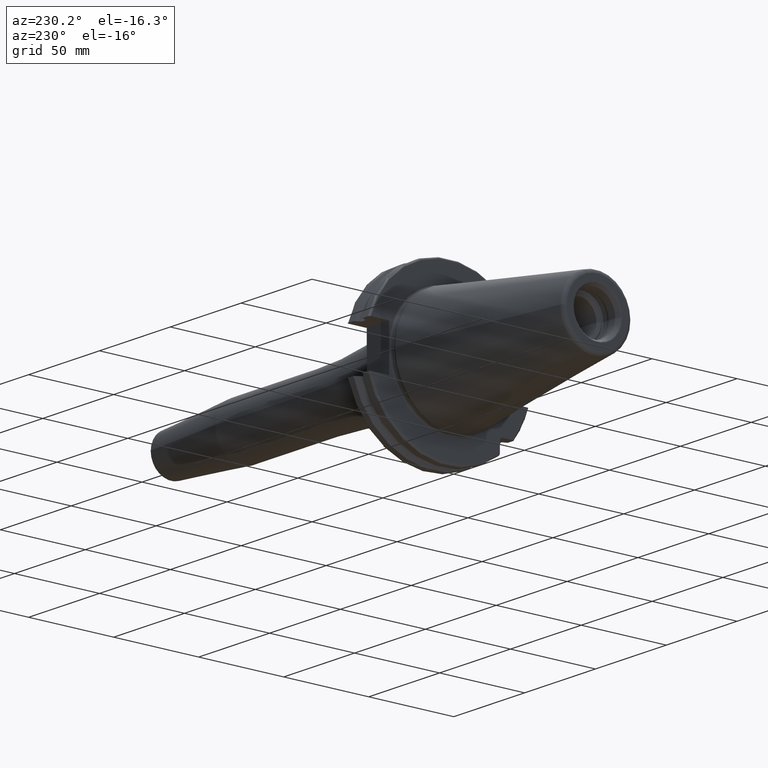
[diagram: clean part render]
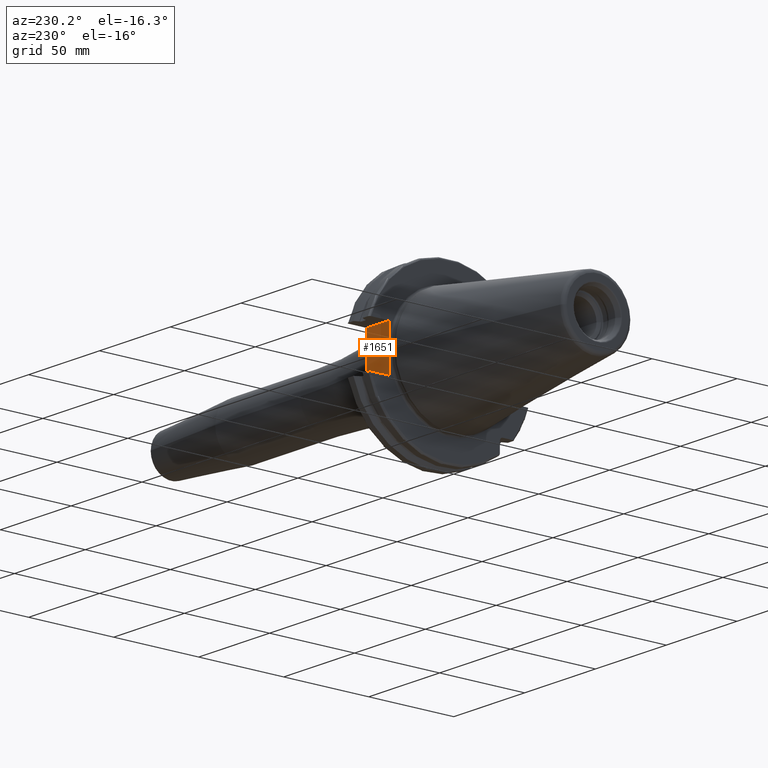
[diagram: same view with one face highlighted and labeled with its STEP entity id]
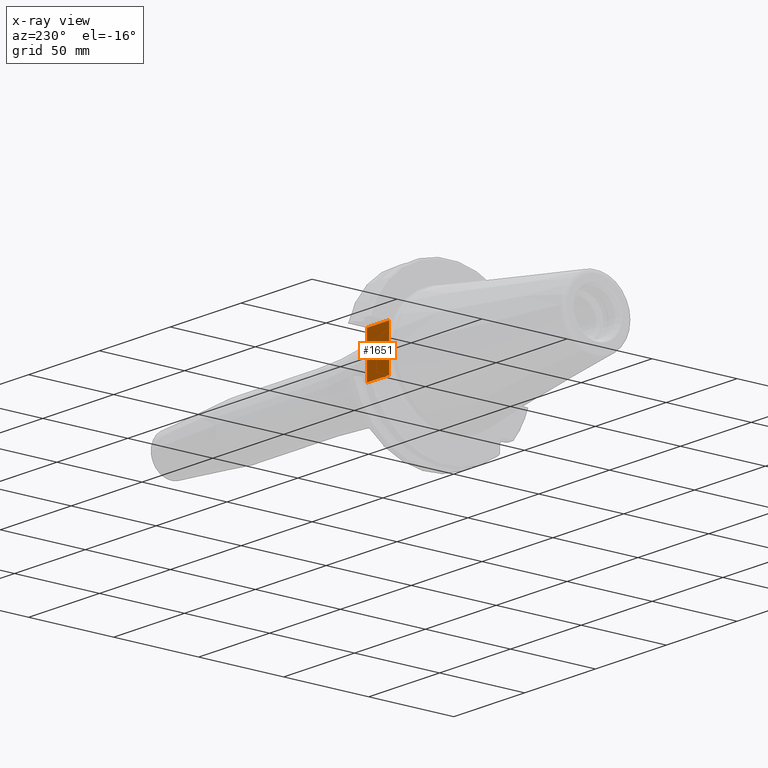
[diagram: x-ray of the same camera — body ghosted, the highlighted face saturated]
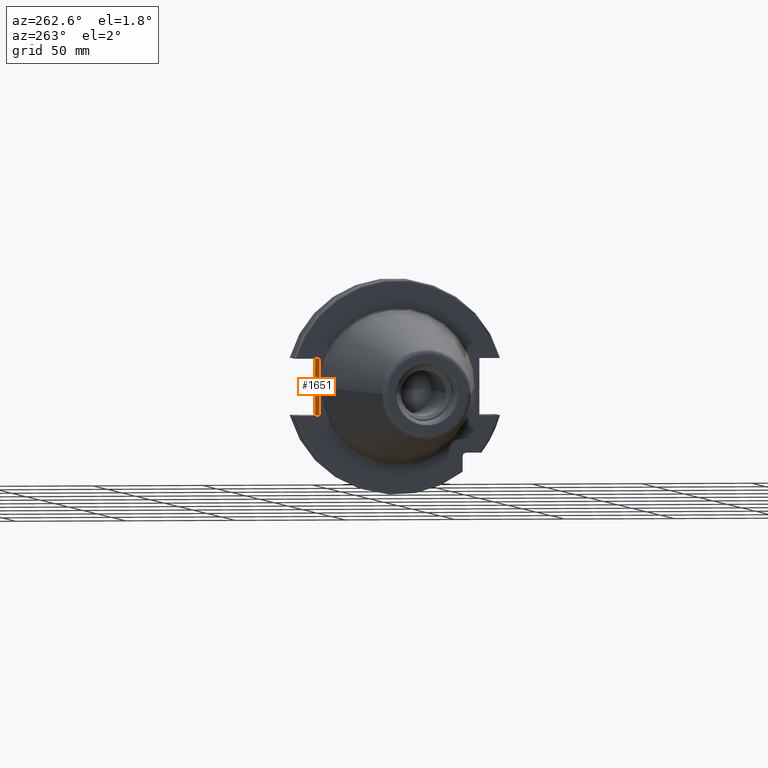
[diagram: same view with one face highlighted and labeled with its STEP entity id]
A machine part, auxiliary view. The second image highlights one B-rep face of the part: STEP entity #1651.
The next image is the same camera in x-ray: the body ghosted, the highlighted face saturated — about 0% of this face is hidden behind the body in this view.
A second angle (auxiliary view) of the same face is appended — the face is thin or edge-on in the first view.
In plain terms, the highlighted planar face has unit normal (0, -1, 0).
Its self-contained STEP definition (entity closure, byte-faithful):
#96=CARTESIAN_POINT('',(3.161444226151E0,3.53E1,1.136082451233E-13));
#97=CARTESIAN_POINT('',(3.161444226151E0,3.53E1,-2.287557745853E-1));
#98=CARTESIAN_POINT('',(3.162734010751E0,3.53E1,-6.792530123044E-1));
#99=CARTESIAN_POINT('',(3.167877030309E0,3.53E1,-1.331895850106E0));
#100=CARTESIAN_POINT('',(3.175250793624E0,3.53E1,-1.967616454588E0));
#101=CARTESIAN_POINT('',(3.183670148061E0,3.53E1,-2.589717830169E0));
#102=CARTESIAN_POINT('',(3.191796133338E0,3.53E1,-3.202378106077E0));
#103=CARTESIAN_POINT('',(3.198127290791E0,3.53E1,-3.809054455619E0));
#104=CARTESIAN_POINT('',(3.2E0,3.53E1,-4.213157466434E0));
#105=CARTESIAN_POINT('',(3.2E0,3.53E1,-4.414818795828E0));
#122=DIRECTION('',(-1.E0,0.E0,0.E0));
#123=VECTOR('',#122,1.585E1);
#124=CARTESIAN_POINT('',(1.905E1,3.53E1,1.29E1));
#125=LINE('',#124,#123);
#150=DIRECTION('',(0.E0,0.E0,-1.E0));
#151=VECTOR('',#150,2.58E1);
#152=CARTESIAN_POINT('',(1.905E1,3.53E1,1.29E1));
#153=LINE('',#152,#151);
#199=DIRECTION('',(0.E0,0.E0,-1.E0));
#200=VECTOR('',#199,8.485181204172E0);
#201=CARTESIAN_POINT('',(3.2E0,3.53E1,-4.414818795828E0));
#202=LINE('',#201,#200);
#203=DIRECTION('',(0.E0,0.E0,-1.E0));
#204=VECTOR('',#203,8.485181204172E0);
#205=CARTESIAN_POINT('',(3.2E0,3.53E1,1.29E1));
#206=LINE('',#205,#204);
#290=DIRECTION('',(-1.E0,0.E0,0.E0));
#291=VECTOR('',#290,1.585E1);
#292=CARTESIAN_POINT('',(1.905E1,3.53E1,-1.29E1));
#293=LINE('',#292,#291);
#880=CARTESIAN_POINT('',(3.2E0,3.53E1,4.414818795828E0));
#881=CARTESIAN_POINT('',(3.2E0,3.53E1,4.213098987331E0));
#882=CARTESIAN_POINT('',(3.198126239348E0,3.53E1,3.808889642023E0));
#883=CARTESIAN_POINT('',(3.191792541487E0,3.53E1,3.202078124088E0));
#884=CARTESIAN_POINT('',(3.183664786024E0,3.53E1,2.589329618622E0));
#885=CARTESIAN_POINT('',(3.175245424270E0,3.53E1,1.967199873297E0));
#886=CARTESIAN_POINT('',(3.167873523896E0,3.53E1,1.331533559003E0));
#887=CARTESIAN_POINT('',(3.162733016852E0,3.53E1,6.790196322901E-1));
#888=CARTESIAN_POINT('',(3.161444226151E0,3.53E1,2.286685292050E-1));
#889=CARTESIAN_POINT('',(3.161444226151E0,3.53E1,1.136082451233E-13));
#1349=CARTESIAN_POINT('',(1.905E1,3.53E1,1.29E1));
#1351=VERTEX_POINT('',#1349);
#1352=CARTESIAN_POINT('',(1.905E1,3.53E1,-1.29E1));
#1353=VERTEX_POINT('',#1352);
#1373=CARTESIAN_POINT('',(3.2E0,3.53E1,1.29E1));
#1375=VERTEX_POINT('',#1373);
#1376=CARTESIAN_POINT('',(3.2E0,3.53E1,4.414818795828E0));
#1377=VERTEX_POINT('',#1376);
#1378=CARTESIAN_POINT('',(3.2E0,3.53E1,-4.414818795828E0));
#1379=CARTESIAN_POINT('',(3.2E0,3.53E1,-1.29E1));
#1380=VERTEX_POINT('',#1378);
#1381=VERTEX_POINT('',#1379);
#1400=VERTEX_POINT('',#889);
#1631=CARTESIAN_POINT('',(1.905E1,3.53E1,1.29E1));
#1632=DIRECTION('',(0.E0,-1.E0,0.E0));
#1633=DIRECTION('',(0.E0,0.E0,-1.E0));
#1634=AXIS2_PLACEMENT_3D('',#1631,#1632,#1633);
#1635=PLANE('',#1634);
#1637=ORIENTED_EDGE('',*,*,#1636,.F.);
#1639=ORIENTED_EDGE('',*,*,#1638,.T.);
#1641=ORIENTED_EDGE('',*,*,#1640,.T.);
#1643=ORIENTED_EDGE('',*,*,#1642,.T.);
#1644=ORIENTED_EDGE('',*,*,#1619,.T.);
#1646=ORIENTED_EDGE('',*,*,#1645,.T.);
#1648=ORIENTED_EDGE('',*,*,#1647,.F.);
#1649=EDGE_LOOP('',(#1637,#1639,#1641,#1643,#1644,#1646,#1648));
#1650=FACE_OUTER_BOUND('',#1649,.F.);
#1651=ADVANCED_FACE('',(#1650),#1635,.F.);
#106=B_SPLINE_CURVE_WITH_KNOTS('',3,(#96,#97,#98,#99,#100,#101,#102,#103,#104,
#105),.UNSPECIFIED.,.F.,.F.,(4,1,1,1,1,1,1,4),(0.E0,1.428571428571E-1,
2.857142857143E-1,4.285714285714E-1,5.714285714286E-1,7.142857142857E-1,
8.571428571429E-1,1.E0),.UNSPECIFIED.);
#890=B_SPLINE_CURVE_WITH_KNOTS('',3,(#880,#881,#882,#883,#884,#885,#886,#887,
#888,#889),.UNSPECIFIED.,.F.,.F.,(4,1,1,1,1,1,1,4),(0.E0,1.428571428571E-1,
2.857142857143E-1,4.285714285714E-1,5.714285714286E-1,7.142857142857E-1,
8.571428571429E-1,1.E0),.UNSPECIFIED.);
#1619=EDGE_CURVE('',#1400,#1380,#106,.T.);
#1636=EDGE_CURVE('',#1351,#1353,#153,.T.);
#1638=EDGE_CURVE('',#1351,#1375,#125,.T.);
#1640=EDGE_CURVE('',#1375,#1377,#206,.T.);
#1642=EDGE_CURVE('',#1377,#1400,#890,.T.);
#1645=EDGE_CURVE('',#1380,#1381,#202,.T.);
#1647=EDGE_CURVE('',#1353,#1381,#293,.T.);